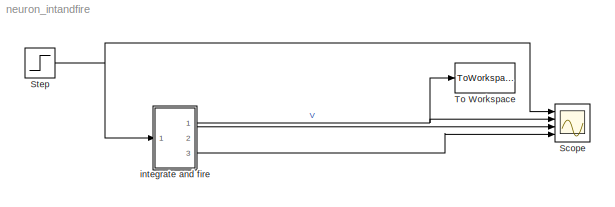
MODEL neuron_intandfire
KIND model
CONFIG PreLoadFcn = a=[-0.1 0.1];
BLOCK [Scope] Scope
  DataFormat = StructureWithTime
  Floating = off
  LimitDataPoints = off
  NumInputPorts = 4
  Ports = [4]
  SampleTime = 0
  YMax = 20~-49~50~100
  YMin = 0~-59~-60~0
  ZoomMode = xonly
BLOCK [Step] Step
  After = 20
  SampleTime = 0
BLOCK [ToWorkspace] To Workspace
  MaxDataPoints = inf
  SampleTime = -1
  SaveFormat = Array
  VariableName = simout
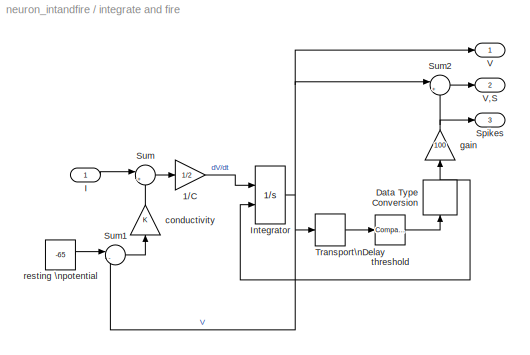
BLOCK [SubSystem] integrate and fire
  MaskDisplay = disp('I & F')
  MaskEnableString = on
  MaskHideContents = off
  MaskIconFrame = on
  MaskIconOpaque = on
  MaskIconRotate = none
  MaskIconUnits = autoscale
  MaskPromptString = Threshold
  MaskStyleString = edit
  MaskToolTipString = on
  MaskTunableValueString = on
  MaskValueString = -50+a
  MaskVariables = th=@1;
  MaskVisibilityString = on
  MinAlgLoopOccurrences = off
  Ports = [1, 3]
  RTWSystemCode = Auto
  TreatAsAtomicUnit = off
BLOCK [Gain] integrate and fire/1//C
  Gain = 1/2
  OutDataTypeMode = Inherit via internal rule
  ParameterDataTypeMode = Inherit via internal rule
  SaturateOnIntegerOverflow = off
BLOCK [DataTypeConversion] integrate and fire/Data Type Conversion
  OutDataTypeMode = double
  RndMeth = Floor
  SaturateOnIntegerOverflow = off
BLOCK [Inport] integrate and fire/I
  IconDisplay = Port number
BLOCK [Integrator] integrate and fire/Integrator
  ExternalReset = rising
  IgnoreLimit = off
  InitialCondition = -55
  Ports = [2, 1]
BLOCK [Outport] integrate and fire/Spikes
  BusOutputAsStruct = off
  IconDisplay = Port number
  Port = 3
BLOCK [Sum] integrate and fire/Sum
  IconShape = round
  InputSameDT = off
  Inputs = |+-
  OutDataTypeMode = Inherit via internal rule
  Ports = [2, 1]
  SaturateOnIntegerOverflow = off
BLOCK [Sum] integrate and fire/Sum1
  IconShape = round
  InputSameDT = off
  Inputs = |-+
  OutDataTypeMode = Inherit via internal rule
  Ports = [2, 1]
  SaturateOnIntegerOverflow = off
BLOCK [Sum] integrate and fire/Sum2
  IconShape = round
  InputSameDT = off
  Inputs = |++
  OutDataTypeMode = Inherit via internal rule
  Ports = [2, 1]
  SaturateOnIntegerOverflow = off
BLOCK [TransportDelay] integrate and fire/Transport\nDelay
  DelayTime = 0.1
  InitialOutput = -65
BLOCK [Outport] integrate and fire/V
  BusOutputAsStruct = off
  IconDisplay = Port number
BLOCK [Outport] integrate and fire/V,S
  BusOutputAsStruct = off
  IconDisplay = Port number
  Port = 2
BLOCK [Gain] integrate and fire/conductivity
  OutDataTypeMode = Inherit via internal rule
  ParameterDataTypeMode = Inherit via internal rule
  SaturateOnIntegerOverflow = off
BLOCK [Gain] integrate and fire/gain
  Gain = 100
  OutDataTypeMode = Inherit via internal rule
  ParameterDataTypeMode = Inherit via internal rule
  SaturateOnIntegerOverflow = off
BLOCK [Constant] integrate and fire/resting \npotential
  Value = -65
BLOCK [Reference] integrate and fire/threshold  REF=simulink/Logic and Bit\nOperations/Compare\nTo Constant
  LogicOutDataTypeMode = boolean
  Ports = [1, 1]
  ShowPortLabels = on
  SourceBlock = simulink/Logic and Bit\nOperations/Compare\nTo Constant
  SourceType = Compare To Constant
  ZeroCross = on
  const = th
  relop = >
NET Step:1 -> Scope:1, integrate and fire:1
LINE integrate and fire/1//C:1 -> integrate and fire/Integrator:1
NET integrate and fire/Data Type Conversion:1 -> integrate and fire/Integrator:2, integrate and fire/gain:1
LINE integrate and fire/I:1 -> integrate and fire/Sum:1
NET integrate and fire/Integrator:1 -> integrate and fire/Sum1:2, integrate and fire/Sum2:1, integrate and fire/Transport\nDelay:1, integrate and fire/V:1
LINE integrate and fire/Sum1:1 -> integrate and fire/conductivity:1
LINE integrate and fire/Sum2:1 -> integrate and fire/V,S:1
LINE integrate and fire/Sum:1 -> integrate and fire/1//C:1
LINE integrate and fire/Transport\nDelay:1 -> integrate and fire/threshold:1
LINE integrate and fire/conductivity:1 -> integrate and fire/Sum:2
NET integrate and fire/gain:1 -> integrate and fire/Spikes:1, integrate and fire/Sum2:2
LINE integrate and fire/resting \npotential:1 -> integrate and fire/Sum1:1
LINE integrate and fire/threshold:1 -> integrate and fire/Data Type Conversion:1
NET integrate and fire:1 -> Scope:2, To Workspace:1
LINE integrate and fire:2 -> Scope:3
LINE integrate and fire:3 -> Scope:4
note: NET lines group one-source signal fan-out (src -> all destinations, sorted); 1:1 wires keep LINE
